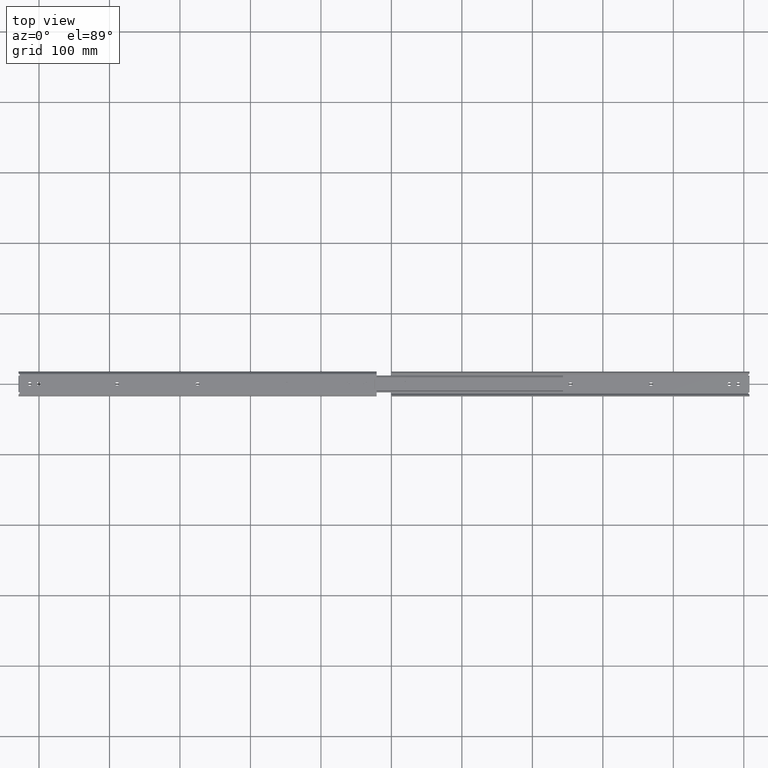
[diagram: clean part render]
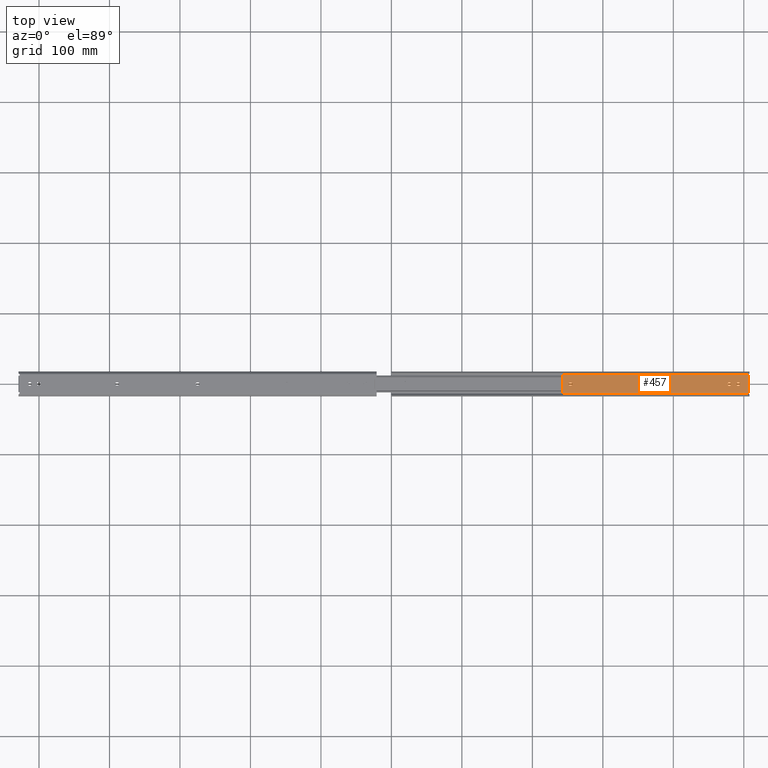
[diagram: same view with one face highlighted and labeled with its STEP entity id]
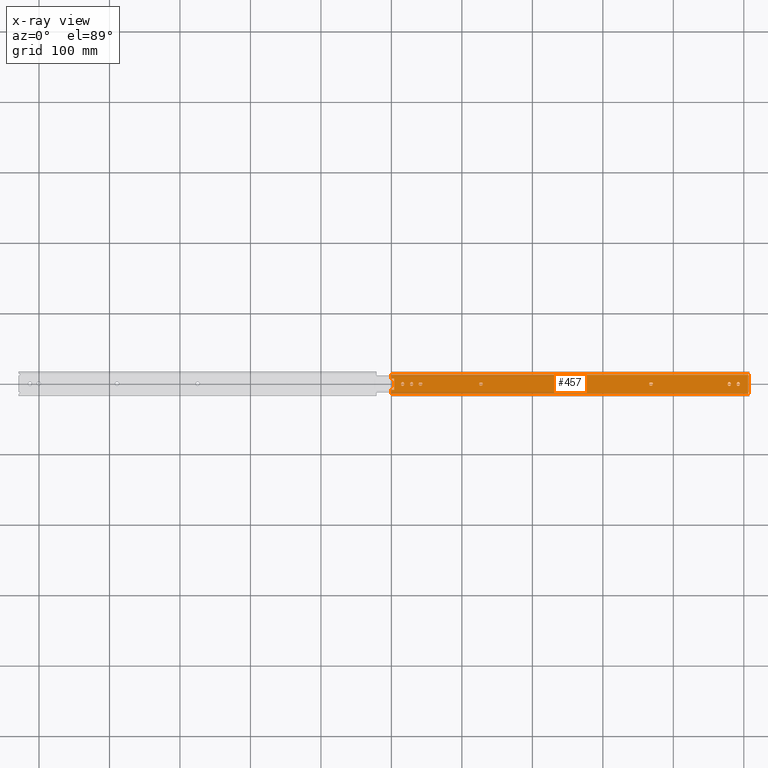
[diagram: x-ray of the same camera — body ghosted, the highlighted face saturated]
A machine part, top view. The second image highlights one B-rep face of the part: STEP entity #457.
The next image is the same camera in x-ray: the body ghosted, the highlighted face saturated — about 0% of this face is hidden behind the body in this view.
In plain terms, the highlighted planar face has unit normal (0, 0, -1).
Its self-contained STEP definition (entity closure, byte-faithful):
#5 = CARTESIAN_POINT ( 'NONE',  ( 492.1000000000000200, -0.3999999999999598300, 1.600000000000168200 ) ) ;
#12 = CIRCLE ( 'NONE', #322, 2.250000000000029800 ) ;
#22 = AXIS2_PLACEMENT_3D ( 'NONE', #2316, #2688, #2342 ) ;
#32 = DIRECTION ( 'NONE',  ( -0.0000000000000000000, 1.000000000000000000, -0.0000000000000000000 ) ) ;
#43 = EDGE_LOOP ( 'NONE', ( #3118, #1268, #4085, #3239 ) ) ;
#57 = CIRCLE ( 'NONE', #58, 2.250000000000001800 ) ;
#58 = AXIS2_PLACEMENT_3D ( 'NONE', #1767, #704, #2543 ) ;
#64 = VERTEX_POINT ( 'NONE', #2339 ) ;
#70 = EDGE_CURVE ( 'NONE', #4031, #3600, #2826, .T. ) ;
#105 = AXIS2_PLACEMENT_3D ( 'NONE', #4296, #2101, #4673 ) ;
#124 = VECTOR ( 'NONE', #377, 1000.000000000000000 ) ;
#143 = EDGE_CURVE ( 'NONE', #379, #862, #3688, .T. ) ;
#152 = VECTOR ( 'NONE', #1735, 1000.000000000000000 ) ;
#154 = VERTEX_POINT ( 'NONE', #2248 ) ;
#175 = AXIS2_PLACEMENT_3D ( 'NONE', #1875, #4438, #2239 ) ;
#211 = CARTESIAN_POINT ( 'NONE',  ( 0.0000000000000000000, 8.000000000000000000, 1.600000000000168200 ) ) ;
#212 = DIRECTION ( 'NONE',  ( -1.355252715606880500E-016, 1.000000000000000000, -0.0000000000000000000 ) ) ;
#216 = EDGE_CURVE ( 'NONE', #2126, #3901, #3348, .T. ) ;
#217 = VECTOR ( 'NONE', #932, 1000.000000000000000 ) ;
#222 = EDGE_CURVE ( 'NONE', #4706, #4031, #2460, .T. ) ;
#243 = VECTOR ( 'NONE', #4186, 1000.000000000000000 ) ;
#297 = LINE ( 'NONE', #4290, #2276 ) ;
#300 = EDGE_CURVE ( 'NONE', #4196, #3437, #3952, .T. ) ;
#303 = DIRECTION ( 'NONE',  ( 1.000000000000000000, 0.0000000000000000000, 0.0000000000000000000 ) ) ;
#320 = CARTESIAN_POINT ( 'NONE',  ( 0.0000000000000000000, 13.34999999999963900, 1.600000000000168200 ) ) ;
#322 = AXIS2_PLACEMENT_3D ( 'NONE', #1106, #3674, #1471 ) ;
#325 = ORIENTED_EDGE ( 'NONE', *, *, #3504, .T. ) ;
#342 = DIRECTION ( 'NONE',  ( 1.000000000000000000, 0.0000000000000000000, 0.0000000000000000000 ) ) ;
#352 = CARTESIAN_POINT ( 'NONE',  ( 368.7000000000000500, 5.082535335627669000E-014, 1.600000000000168200 ) ) ;
#356 = VECTOR ( 'NONE', #4611, 1000.000000000000000 ) ;
#370 = CARTESIAN_POINT ( 'NONE',  ( 0.0000000000000000000, -13.34999999999963900, 1.600000000000168200 ) ) ;
#373 = CARTESIAN_POINT ( 'NONE',  ( 18.15000000000000600, 0.3999999999999995800, 1.600000000000168200 ) ) ;
#375 = EDGE_CURVE ( 'NONE', #2448, #2126, #3740, .T. ) ;
#377 = DIRECTION ( 'NONE',  ( 1.000000000000000000, 0.0000000000000000000, 0.0000000000000000000 ) ) ;
#379 = VERTEX_POINT ( 'NONE', #3242 ) ;
#390 = DIRECTION ( 'NONE',  ( 0.0000000000000000000, 0.0000000000000000000, 1.000000000000000000 ) ) ;
#395 = ORIENTED_EDGE ( 'NONE', *, *, #3911, .F. ) ;
#398 = CARTESIAN_POINT ( 'NONE',  ( 254.4000000000000100, 2.249999999999965800, 1.600000000000168200 ) ) ;
#400 = VERTEX_POINT ( 'NONE', #2232 ) ;
#404 = CIRCLE ( 'NONE', #1876, 2.250000000000029800 ) ;
#421 = DIRECTION ( 'NONE',  ( 0.0000000000000000000, 0.0000000000000000000, 1.000000000000000000 ) ) ;
#424 = VECTOR ( 'NONE', #1825, 1000.000000000000000 ) ;
#435 = CARTESIAN_POINT ( 'NONE',  ( 506.3220781010616600, -13.34999999999963900, 1.600000000000168200 ) ) ;
#457 = ADVANCED_FACE ( 'NONE', ( #4360, #1556, #2524, #799, #3397, #2406, #1701, #725, #4522 ), #513, .F. ) ;
#477 = VECTOR ( 'NONE', #3534, 1000.000000000000000 ) ;
#478 = VECTOR ( 'NONE', #929, 1000.000000000000000 ) ;
#513 = PLANE ( 'NONE',  #22 ) ;
#516 = VERTEX_POINT ( 'NONE', #1185 ) ;
#517 = LINE ( 'NONE', #4460, #4313 ) ;
#523 = VERTEX_POINT ( 'NONE', #2702 ) ;
#529 = DIRECTION ( 'NONE',  ( 1.000000000000000000, 0.0000000000000000000, 0.0000000000000000000 ) ) ;
#530 = VECTOR ( 'NONE', #3368, 1000.000000000000000 ) ;
#578 = EDGE_CURVE ( 'NONE', #862, #1206, #1995, .T. ) ;
#594 = LINE ( 'NONE', #3625, #477 ) ;
#600 = DIRECTION ( 'NONE',  ( 0.0000000000000000000, 0.0000000000000000000, 1.000000000000000000 ) ) ;
#610 = AXIS2_PLACEMENT_3D ( 'NONE', #3990, #989, #1717 ) ;
#620 = ORIENTED_EDGE ( 'NONE', *, *, #721, .F. ) ;
#627 = VERTEX_POINT ( 'NONE', #3183 ) ;
#636 = EDGE_CURVE ( 'NONE', #516, #64, #892, .T. ) ;
#661 = VECTOR ( 'NONE', #4370, 1000.000000000000000 ) ;
#669 = CARTESIAN_POINT ( 'NONE',  ( 367.8999999999999800, 2.249999999999948900, 1.600000000000168200 ) ) ;
#671 = CARTESIAN_POINT ( 'NONE',  ( 477.1500000000000900, 0.4000000000000340000, 1.600000000000168200 ) ) ;
#677 = ORIENTED_EDGE ( 'NONE', *, *, #2538, .F. ) ;
#681 = CARTESIAN_POINT ( 'NONE',  ( 479.4000000000000300, 0.4000000000000901200, 1.600000000000168200 ) ) ;
#685 = EDGE_LOOP ( 'NONE', ( #1222, #4643, #2525, #3959 ) ) ;
#704 = DIRECTION ( 'NONE',  ( 0.0000000000000000000, 0.0000000000000000000, 1.000000000000000000 ) ) ;
#721 = EDGE_CURVE ( 'NONE', #3566, #4196, #3595, .T. ) ;
#725 = FACE_BOUND ( 'NONE', #1040, .T. ) ;
#734 = DIRECTION ( 'NONE',  ( 1.000000000000000000, 0.0000000000000000000, 0.0000000000000000000 ) ) ;
#740 = DIRECTION ( 'NONE',  ( 1.000000000000000000, 0.0000000000000000000, 0.0000000000000000000 ) ) ;
#743 = CARTESIAN_POINT ( 'NONE',  ( 506.3999999999999800, 11.49999999999984700, 1.600000000000168200 ) ) ;
#790 = EDGE_CURVE ( 'NONE', #3473, #2448, #297, .T. ) ;
#791 = DIRECTION ( 'NONE',  ( 0.0000000000000000000, -1.000000000000000000, 0.0000000000000000000 ) ) ;
#799 = FACE_BOUND ( 'NONE', #2765, .T. ) ;
#800 = ORIENTED_EDGE ( 'NONE', *, *, #3784, .F. ) ;
#804 = EDGE_CURVE ( 'NONE', #627, #4189, #3150, .T. ) ;
#812 = VERTEX_POINT ( 'NONE', #3519 ) ;
#840 = EDGE_CURVE ( 'NONE', #1558, #4305, #1935, .T. ) ;
#860 = VECTOR ( 'NONE', #2621, 1000.000000000000000 ) ;
#862 = VERTEX_POINT ( 'NONE', #2095 ) ;
#863 = ORIENTED_EDGE ( 'NONE', *, *, #2198, .F. ) ;
#875 = AXIS2_PLACEMENT_3D ( 'NONE', #2623, #3681, #4687 ) ;
#892 = LINE ( 'NONE', #211, #3931 ) ;
#898 = CARTESIAN_POINT ( 'NONE',  ( 26.34999999999998400, 0.3999999999999975800, 1.600000000000168200 ) ) ;
#923 = CARTESIAN_POINT ( 'NONE',  ( 254.4000000000000600, 1.507836666562150000E-012, 1.600000000000168200 ) ) ;
#929 = DIRECTION ( 'NONE',  ( -1.355252715606880500E-016, 1.000000000000000000, -0.0000000000000000000 ) ) ;
#932 = DIRECTION ( 'NONE',  ( -0.0000000000000000000, 1.000000000000000000, -0.0000000000000000000 ) ) ;
#957 = EDGE_CURVE ( 'NONE', #1954, #1574, #594, .T. ) ;
#967 = VERTEX_POINT ( 'NONE', #2377 ) ;
#972 = ORIENTED_EDGE ( 'NONE', *, *, #2631, .F. ) ;
#985 = EDGE_CURVE ( 'NONE', #967, #64, #2333, .T. ) ;
#989 = DIRECTION ( 'NONE',  ( -0.0000000000000000000, -0.0000000000000000000, 1.000000000000000000 ) ) ;
#1002 = LINE ( 'NONE', #1719, #3818 ) ;
#1007 = LINE ( 'NONE', #3319, #4688 ) ;
#1009 = CARTESIAN_POINT ( 'NONE',  ( 3.799999999999999400, 8.000000000000000000, 1.600000000000168200 ) ) ;
#1027 = VERTEX_POINT ( 'NONE', #2083 ) ;
#1033 = AXIS2_PLACEMENT_3D ( 'NONE', #1437, #4001, #1813 ) ;
#1034 = CARTESIAN_POINT ( 'NONE',  ( 367.8999999999999800, -2.250000000000050600, 1.600000000000168200 ) ) ;
#1036 = ORIENTED_EDGE ( 'NONE', *, *, #3443, .F. ) ;
#1040 = EDGE_LOOP ( 'NONE', ( #3351, #395, #1504, #2466 ) ) ;
#1043 = ORIENTED_EDGE ( 'NONE', *, *, #578, .F. ) ;
#1051 = EDGE_CURVE ( 'NONE', #4142, #379, #3087, .T. ) ;
#1061 = EDGE_CURVE ( 'NONE', #4638, #1156, #2978, .T. ) ;
#1065 = DIRECTION ( 'NONE',  ( 1.000000000000000000, 0.0000000000000000000, 0.0000000000000000000 ) ) ;
#1067 = VECTOR ( 'NONE', #2592, 1000.000000000000000 ) ;
#1103 = VECTOR ( 'NONE', #2899, 1000.000000000000000 ) ;
#1106 = CARTESIAN_POINT ( 'NONE',  ( 479.4000000000000300, -0.3999999999999614400, 1.600000000000168200 ) ) ;
#1108 = VERTEX_POINT ( 'NONE', #4790 ) ;
#1129 = EDGE_CURVE ( 'NONE', #4305, #3566, #3713, .T. ) ;
#1150 = EDGE_CURVE ( 'NONE', #154, #4706, #2853, .T. ) ;
#1156 = VERTEX_POINT ( 'NONE', #2967 ) ;
#1157 = EDGE_CURVE ( 'NONE', #523, #2457, #1640, .T. ) ;
#1162 = CARTESIAN_POINT ( 'NONE',  ( 489.8500000000000800, 0.4000000000000345500, 1.600000000000168200 ) ) ;
#1164 = EDGE_CURVE ( 'NONE', #1156, #2409, #1523, .T. ) ;
#1176 = EDGE_LOOP ( 'NONE', ( #677, #2653, #800, #4601, #3453 ) ) ;
#1185 = CARTESIAN_POINT ( 'NONE',  ( 3.799999999999999400, 8.000000000000000000, 1.600000000000168200 ) ) ;
#1195 = VERTEX_POINT ( 'NONE', #3985 ) ;
#1206 = VERTEX_POINT ( 'NONE', #398 ) ;
#1207 = CARTESIAN_POINT ( 'NONE',  ( 43.95000000000000300, 3.337652803933819400E-015, 1.600000000000168200 ) ) ;
#1222 = ORIENTED_EDGE ( 'NONE', *, *, #957, .F. ) ;
#1230 = CIRCLE ( 'NONE', #1033, 2.249999999999998700 ) ;
#1247 = LINE ( 'NONE', #3459, #243 ) ;
#1258 = ORIENTED_EDGE ( 'NONE', *, *, #2274, .F. ) ;
#1261 = EDGE_LOOP ( 'NONE', ( #1613, #2773, #4648, #1043, #2465 ) ) ;
#1268 = ORIENTED_EDGE ( 'NONE', *, *, #2577, .F. ) ;
#1289 = CARTESIAN_POINT ( 'NONE',  ( 3.799999999999999400, 8.000000000000000000, 1.600000000000168200 ) ) ;
#1299 = VECTOR ( 'NONE', #212, 1000.000000000000000 ) ;
#1303 = AXIS2_PLACEMENT_3D ( 'NONE', #352, #2958, #740 ) ;
#1308 = CARTESIAN_POINT ( 'NONE',  ( 30.85000000000000100, 0.4000000000000040700, 1.600000000000168200 ) ) ;
#1329 = DIRECTION ( 'NONE',  ( 1.000000000000000000, 0.0000000000000000000, 0.0000000000000000000 ) ) ;
#1338 = VECTOR ( 'NONE', #3606, 1000.000000000000000 ) ;
#1340 = AXIS2_PLACEMENT_3D ( 'NONE', #5, #4340, #2916 ) ;
#1356 = AXIS2_PLACEMENT_3D ( 'NONE', #4726, #2519, #303 ) ;
#1390 = VECTOR ( 'NONE', #791, 1000.000000000000000 ) ;
#1399 = CARTESIAN_POINT ( 'NONE',  ( 506.3999999999999800, 11.49999999999984700, 1.600000000000168200 ) ) ;
#1417 = CARTESIAN_POINT ( 'NONE',  ( 40.89999999999999100, -2.250000000000001800, 1.600000000000168200 ) ) ;
#1419 = AXIS2_PLACEMENT_3D ( 'NONE', #2647, #421, #3025 ) ;
#1420 = VERTEX_POINT ( 'NONE', #1207 ) ;
#1426 = ORIENTED_EDGE ( 'NONE', *, *, #4184, .F. ) ;
#1437 = CARTESIAN_POINT ( 'NONE',  ( 28.59999999999999800, 0.4000000000000038000, 1.600000000000168200 ) ) ;
#1461 = CARTESIAN_POINT ( 'NONE',  ( 40.89999999999999100, -2.250000000000001800, 1.600000000000168200 ) ) ;
#1471 = DIRECTION ( 'NONE',  ( 1.000000000000000000, 0.0000000000000000000, 0.0000000000000000000 ) ) ;
#1504 = ORIENTED_EDGE ( 'NONE', *, *, #4315, .F. ) ;
#1505 = VERTEX_POINT ( 'NONE', #743 ) ;
#1507 = CIRCLE ( 'NONE', #1356, 2.250000000000001800 ) ;
#1515 = LINE ( 'NONE', #1399, #4561 ) ;
#1523 = LINE ( 'NONE', #1942, #2488 ) ;
#1530 = CARTESIAN_POINT ( 'NONE',  ( 253.5999999999999900, 2.249999999999965800, 1.600000000000168200 ) ) ;
#1534 = ORIENTED_EDGE ( 'NONE', *, *, #3594, .T. ) ;
#1535 = CARTESIAN_POINT ( 'NONE',  ( 129.6500000000000100, 1.230082464744604100E-014, 1.600000000000168200 ) ) ;
#1548 = CARTESIAN_POINT ( 'NONE',  ( 506.3220781010616600, 13.34999999999963900, 1.600000000000168200 ) ) ;
#1556 = FACE_BOUND ( 'NONE', #1261, .T. ) ;
#1558 = VERTEX_POINT ( 'NONE', #1535 ) ;
#1574 = VERTEX_POINT ( 'NONE', #3614 ) ;
#1600 = CARTESIAN_POINT ( 'NONE',  ( 41.70000000000000300, 3.337652803933819400E-015, 1.600000000000168200 ) ) ;
#1613 = ORIENTED_EDGE ( 'NONE', *, *, #1051, .F. ) ;
#1617 = ORIENTED_EDGE ( 'NONE', *, *, #300, .F. ) ;
#1640 = CIRCLE ( 'NONE', #2825, 2.249999999999974200 ) ;
#1674 = CARTESIAN_POINT ( 'NONE',  ( 126.5999999999999900, -2.250000000000007100, 1.600000000000168200 ) ) ;
#1701 = FACE_BOUND ( 'NONE', #43, .T. ) ;
#1706 = CARTESIAN_POINT ( 'NONE',  ( 253.5999999999999900, -1.540743955509788700E-030, 1.600000000000168200 ) ) ;
#1714 = DIRECTION ( 'NONE',  ( -1.000000000000000000, -0.0000000000000000000, -0.0000000000000000000 ) ) ;
#1716 = ORIENTED_EDGE ( 'NONE', *, *, #222, .F. ) ;
#1717 = DIRECTION ( 'NONE',  ( -1.000000000000000000, 4.403528823633166200E-014, 0.0000000000000000000 ) ) ;
#1719 = CARTESIAN_POINT ( 'NONE',  ( 18.15000000000000600, 0.3999999999999995800, 1.600000000000168200 ) ) ;
#1735 = DIRECTION ( 'NONE',  ( 1.000000000000000000, 0.0000000000000000000, 0.0000000000000000000 ) ) ;
#1752 = VECTOR ( 'NONE', #2932, 1000.000000000000000 ) ;
#1767 = CARTESIAN_POINT ( 'NONE',  ( 127.4000000000000200, 1.230082464744604100E-014, 1.600000000000168200 ) ) ;
#1768 = EDGE_CURVE ( 'NONE', #3437, #1558, #57, .T. ) ;
#1771 = CARTESIAN_POINT ( 'NONE',  ( 127.4000000000000200, -2.249999999999987600, 1.600000000000168200 ) ) ;
#1777 = VERTEX_POINT ( 'NONE', #2661 ) ;
#1793 = VERTEX_POINT ( 'NONE', #2752 ) ;
#1794 = CARTESIAN_POINT ( 'NONE',  ( 3.800000000000001600, -8.000000000000000000, 1.600000000000168200 ) ) ;
#1796 = DIRECTION ( 'NONE',  ( -0.0000000000000000000, 1.000000000000000000, -0.0000000000000000000 ) ) ;
#1813 = DIRECTION ( 'NONE',  ( 1.000000000000000000, 0.0000000000000000000, 0.0000000000000000000 ) ) ;
#1814 = DIRECTION ( 'NONE',  ( 0.0000000000000000000, 0.0000000000000000000, 1.000000000000000000 ) ) ;
#1818 = VERTEX_POINT ( 'NONE', #2452 ) ;
#1825 = DIRECTION ( 'NONE',  ( 0.0000000000000000000, -1.000000000000000000, 0.0000000000000000000 ) ) ;
#1827 = AXIS2_PLACEMENT_3D ( 'NONE', #2616, #390, #2996 ) ;
#1842 = DIRECTION ( 'NONE',  ( 1.000000000000000000, 0.0000000000000000000, 0.0000000000000000000 ) ) ;
#1851 = ORIENTED_EDGE ( 'NONE', *, *, #2726, .F. ) ;
#1875 = CARTESIAN_POINT ( 'NONE',  ( 507.5000000000007400, 12.79999999999966100, 1.600000000000168200 ) ) ;
#1876 = AXIS2_PLACEMENT_3D ( 'NONE', #681, #3276, #1065 ) ;
#1904 = DIRECTION ( 'NONE',  ( 1.000000000000000000, 0.0000000000000000000, 0.0000000000000000000 ) ) ;
#1933 = DIRECTION ( 'NONE',  ( 0.0000000000000000000, 0.0000000000000000000, 1.000000000000000000 ) ) ;
#1935 = CIRCLE ( 'NONE', #2672, 2.250000000000001800 ) ;
#1940 = CIRCLE ( 'NONE', #1419, 2.249999999999974200 ) ;
#1942 = CARTESIAN_POINT ( 'NONE',  ( 494.3499999999999100, 0.4000000000000920000, 1.600000000000168200 ) ) ;
#1954 = VERTEX_POINT ( 'NONE', #671 ) ;
#1966 = VERTEX_POINT ( 'NONE', #1794 ) ;
#1974 = DIRECTION ( 'NONE',  ( 1.000000000000000000, 0.0000000000000000000, 0.0000000000000000000 ) ) ;
#1975 = CIRCLE ( 'NONE', #2766, 2.249999999999918700 ) ;
#1995 = CIRCLE ( 'NONE', #2498, 2.249999999999974200 ) ;
#2071 = LINE ( 'NONE', #3250, #1103 ) ;
#2074 = DIRECTION ( 'NONE',  ( 1.000000000000000000, 0.0000000000000000000, 0.0000000000000000000 ) ) ;
#2075 = ORIENTED_EDGE ( 'NONE', *, *, #1061, .F. ) ;
#2083 = CARTESIAN_POINT ( 'NONE',  ( 489.8500000000000800, 0.4000000000000340000, 1.600000000000168200 ) ) ;
#2095 = CARTESIAN_POINT ( 'NONE',  ( 256.6500000000000300, 1.507836666562150000E-012, 1.600000000000168200 ) ) ;
#2101 = DIRECTION ( 'NONE',  ( 0.0000000000000000000, 0.0000000000000000000, 1.000000000000000000 ) ) ;
#2116 = VERTEX_POINT ( 'NONE', #669 ) ;
#2126 = VERTEX_POINT ( 'NONE', #1417 ) ;
#2159 = CIRCLE ( 'NONE', #175, 1.300000000000078900 ) ;
#2162 = ORIENTED_EDGE ( 'NONE', *, *, #375, .F. ) ;
#2166 = CARTESIAN_POINT ( 'NONE',  ( 508.0000000000000000, 13.34999999999963900, 1.600000000000168200 ) ) ;
#2180 = CARTESIAN_POINT ( 'NONE',  ( 489.8500000000001400, -0.4000000000000335000, 1.600000000000168200 ) ) ;
#2184 = EDGE_CURVE ( 'NONE', #2751, #4142, #2968, .T. ) ;
#2186 = ORIENTED_EDGE ( 'NONE', *, *, #790, .F. ) ;
#2190 = LINE ( 'NONE', #1308, #217 ) ;
#2192 = CARTESIAN_POINT ( 'NONE',  ( 253.5999999999999900, -2.250000000000033800, 1.600000000000168200 ) ) ;
#2198 = EDGE_CURVE ( 'NONE', #1420, #3473, #2200, .T. ) ;
#2200 = CIRCLE ( 'NONE', #3919, 2.250000000000001800 ) ;
#2211 = DIRECTION ( 'NONE',  ( 0.0000000000000000000, 0.0000000000000000000, 1.000000000000000000 ) ) ;
#2223 = CARTESIAN_POINT ( 'NONE',  ( 41.70000000000000300, -2.249999999999996400, 1.600000000000168200 ) ) ;
#2232 = CARTESIAN_POINT ( 'NONE',  ( 481.6500000000001500, -0.3999999999999602800, 1.600000000000168200 ) ) ;
#2239 = DIRECTION ( 'NONE',  ( -1.000000000000000000, 0.0000000000000000000, 0.0000000000000000000 ) ) ;
#2248 = CARTESIAN_POINT ( 'NONE',  ( 506.3999999999999800, -11.49999999999980600, 1.600000000000168200 ) ) ;
#2274 = EDGE_CURVE ( 'NONE', #1966, #627, #3583, .T. ) ;
#2276 = VECTOR ( 'NONE', #3126, 1000.000000000000000 ) ;
#2282 = EDGE_CURVE ( 'NONE', #1505, #154, #1515, .T. ) ;
#2315 = EDGE_CURVE ( 'NONE', #1777, #1954, #404, .T. ) ;
#2316 = CARTESIAN_POINT ( 'NONE',  ( 508.0000000000000000, 13.34999999999963900, 1.600000000000168200 ) ) ;
#2333 = LINE ( 'NONE', #4734, #356 ) ;
#2338 = VECTOR ( 'NONE', #4550, 1000.000000000000000 ) ;
#2339 = CARTESIAN_POINT ( 'NONE',  ( 0.0000000000000000000, 8.000000000000000000, 1.600000000000168200 ) ) ;
#2342 = DIRECTION ( 'NONE',  ( -1.000000000000000000, 0.0000000000000000000, -0.0000000000000000000 ) ) ;
#2353 = ORIENTED_EDGE ( 'NONE', *, *, #636, .F. ) ;
#2360 = VECTOR ( 'NONE', #734, 1000.000000000000000 ) ;
#2372 = LINE ( 'NONE', #1162, #1390 ) ;
#2377 = CARTESIAN_POINT ( 'NONE',  ( 0.0000000000000000000, 13.34999999999963900, 1.600000000000168200 ) ) ;
#2401 = DIRECTION ( 'NONE',  ( 0.0000000000000000000, 0.0000000000000000000, 1.000000000000000000 ) ) ;
#2406 = FACE_BOUND ( 'NONE', #685, .T. ) ;
#2409 = VERTEX_POINT ( 'NONE', #3530 ) ;
#2417 = ORIENTED_EDGE ( 'NONE', *, *, #804, .F. ) ;
#2438 = CARTESIAN_POINT ( 'NONE',  ( 40.89999999999999100, 2.249999999999998200, 1.600000000000168200 ) ) ;
#2439 = LINE ( 'NONE', #4171, #2338 ) ;
#2448 = VERTEX_POINT ( 'NONE', #2438 ) ;
#2452 = CARTESIAN_POINT ( 'NONE',  ( 507.5000000000013100, 11.49999999999984700, 1.600000000000168200 ) ) ;
#2457 = VERTEX_POINT ( 'NONE', #3197 ) ;
#2460 = CIRCLE ( 'NONE', #610, 1.300000000000078900 ) ;
#2465 = ORIENTED_EDGE ( 'NONE', *, *, #143, .F. ) ;
#2466 = ORIENTED_EDGE ( 'NONE', *, *, #3053, .F. ) ;
#2488 = VECTOR ( 'NONE', #1796, 1000.000000000000000 ) ;
#2498 = AXIS2_PLACEMENT_3D ( 'NONE', #923, #1933, #529 ) ;
#2501 = LINE ( 'NONE', #2166, #661 ) ;
#2519 = DIRECTION ( 'NONE',  ( 0.0000000000000000000, 0.0000000000000000000, 1.000000000000000000 ) ) ;
#2524 = FACE_BOUND ( 'NONE', #3161, .T. ) ;
#2525 = ORIENTED_EDGE ( 'NONE', *, *, #2720, .F. ) ;
#2531 = CARTESIAN_POINT ( 'NONE',  ( 127.4000000000000200, 1.230082464744604100E-014, 1.600000000000168200 ) ) ;
#2538 = EDGE_CURVE ( 'NONE', #4656, #2541, #3312, .T. ) ;
#2541 = VERTEX_POINT ( 'NONE', #3969 ) ;
#2543 = DIRECTION ( 'NONE',  ( 1.000000000000000000, 0.0000000000000000000, 0.0000000000000000000 ) ) ;
#2568 = CARTESIAN_POINT ( 'NONE',  ( 367.8999999999999800, -2.250000000000050600, 1.600000000000168200 ) ) ;
#2577 = EDGE_CURVE ( 'NONE', #812, #3799, #1230, .T. ) ;
#2592 = DIRECTION ( 'NONE',  ( 0.0000000000000000000, -1.000000000000000000, 0.0000000000000000000 ) ) ;
#2594 = ORIENTED_EDGE ( 'NONE', *, *, #1150, .F. ) ;
#2601 = ORIENTED_EDGE ( 'NONE', *, *, #216, .F. ) ;
#2616 = CARTESIAN_POINT ( 'NONE',  ( 15.89999999999999700, 0.3999999999999997400, 1.600000000000168200 ) ) ;
#2621 = DIRECTION ( 'NONE',  ( -1.000000000000000000, -0.0000000000000000000, -0.0000000000000000000 ) ) ;
#2623 = CARTESIAN_POINT ( 'NONE',  ( 40.89999999999999100, 3.239681060002030200E-015, 1.600000000000168200 ) ) ;
#2631 = EDGE_CURVE ( 'NONE', #2409, #1027, #1975, .T. ) ;
#2647 = CARTESIAN_POINT ( 'NONE',  ( 367.8999999999999800, -1.540743955509788700E-030, 1.600000000000168200 ) ) ;
#2653 = ORIENTED_EDGE ( 'NONE', *, *, #3635, .F. ) ;
#2661 = CARTESIAN_POINT ( 'NONE',  ( 481.6500000000001500, 0.4000000000000903900, 1.600000000000168200 ) ) ;
#2672 = AXIS2_PLACEMENT_3D ( 'NONE', #2531, #2401, #1329 ) ;
#2688 = DIRECTION ( 'NONE',  ( 0.0000000000000000000, 0.0000000000000000000, -1.000000000000000000 ) ) ;
#2702 = CARTESIAN_POINT ( 'NONE',  ( 370.9499999999999900, 5.082535335627669000E-014, 1.600000000000168200 ) ) ;
#2720 = EDGE_CURVE ( 'NONE', #400, #1777, #517, .T. ) ;
#2726 = EDGE_CURVE ( 'NONE', #1027, #4638, #2372, .T. ) ;
#2751 = VERTEX_POINT ( 'NONE', #3739 ) ;
#2752 = CARTESIAN_POINT ( 'NONE',  ( 18.15000000000000600, -0.3999999999999995800, 1.600000000000168200 ) ) ;
#2765 = EDGE_LOOP ( 'NONE', ( #2601, #2162, #2186, #863, #3798 ) ) ;
#2766 = AXIS2_PLACEMENT_3D ( 'NONE', #4406, #2211, #4789 ) ;
#2773 = ORIENTED_EDGE ( 'NONE', *, *, #2184, .F. ) ;
#2814 = EDGE_CURVE ( 'NONE', #3901, #1420, #3854, .T. ) ;
#2820 = CARTESIAN_POINT ( 'NONE',  ( 41.70000000000000300, 3.337652803933819400E-015, 1.600000000000168200 ) ) ;
#2825 = AXIS2_PLACEMENT_3D ( 'NONE', #4002, #1814, #342 ) ;
#2826 = LINE ( 'NONE', #4539, #860 ) ;
#2853 = LINE ( 'NONE', #2878, #4457 ) ;
#2878 = CARTESIAN_POINT ( 'NONE',  ( 508.0000000000000000, -11.49999999999980600, 1.600000000000168200 ) ) ;
#2899 = DIRECTION ( 'NONE',  ( -1.000000000000000000, 0.0000000000000000000, 0.0000000000000000000 ) ) ;
#2916 = DIRECTION ( 'NONE',  ( 1.000000000000000000, 0.0000000000000000000, 0.0000000000000000000 ) ) ;
#2932 = DIRECTION ( 'NONE',  ( -1.000000000000000000, -0.0000000000000000000, -0.0000000000000000000 ) ) ;
#2935 = CARTESIAN_POINT ( 'NONE',  ( 126.5999999999999900, -2.250000000000006700, 1.600000000000168200 ) ) ;
#2956 = CIRCLE ( 'NONE', #105, 2.250000000000001800 ) ;
#2958 = DIRECTION ( 'NONE',  ( 0.0000000000000000000, 0.0000000000000000000, 1.000000000000000000 ) ) ;
#2961 = CARTESIAN_POINT ( 'NONE',  ( 126.5999999999999900, 2.249999999999992900, 1.600000000000168200 ) ) ;
#2962 = AXIS2_PLACEMENT_3D ( 'NONE', #1706, #4264, #2074 ) ;
#2967 = CARTESIAN_POINT ( 'NONE',  ( 494.3499999999999100, -0.3999999999999586700, 1.600000000000168200 ) ) ;
#2968 = CIRCLE ( 'NONE', #2962, 2.249999999999974200 ) ;
#2978 = CIRCLE ( 'NONE', #1340, 2.249999999999918700 ) ;
#2988 = EDGE_CURVE ( 'NONE', #3286, #812, #2190, .T. ) ;
#2996 = DIRECTION ( 'NONE',  ( 1.000000000000000000, 0.0000000000000000000, 0.0000000000000000000 ) ) ;
#3025 = DIRECTION ( 'NONE',  ( 1.000000000000000000, 0.0000000000000000000, 0.0000000000000000000 ) ) ;
#3053 = EDGE_CURVE ( 'NONE', #1108, #1793, #2956, .T. ) ;
#3087 = LINE ( 'NONE', #2192, #124 ) ;
#3104 = CARTESIAN_POINT ( 'NONE',  ( 3.799999999999999400, 8.000000000000000000, 1.600000000000168200 ) ) ;
#3118 = ORIENTED_EDGE ( 'NONE', *, *, #4497, .F. ) ;
#3126 = DIRECTION ( 'NONE',  ( -1.000000000000000000, -0.0000000000000000000, -0.0000000000000000000 ) ) ;
#3138 = EDGE_CURVE ( 'NONE', #4332, #3286, #1507, .T. ) ;
#3149 = CARTESIAN_POINT ( 'NONE',  ( 3.799999999999999400, 7.000000000000000000, 1.600000000000168200 ) ) ;
#3150 = LINE ( 'NONE', #3104, #1299 ) ;
#3161 = EDGE_LOOP ( 'NONE', ( #1617, #620, #3692, #3455, #4546 ) ) ;
#3183 = CARTESIAN_POINT ( 'NONE',  ( 3.800000000000001600, -6.999999999999999100, 1.600000000000168200 ) ) ;
#3188 = CARTESIAN_POINT ( 'NONE',  ( 127.4000000000000200, 2.249999999999992900, 1.600000000000168200 ) ) ;
#3190 = DIRECTION ( 'NONE',  ( 1.000000000000000000, 0.0000000000000000000, 0.0000000000000000000 ) ) ;
#3197 = CARTESIAN_POINT ( 'NONE',  ( 368.7000000000001000, 2.249999999999948900, 1.600000000000168200 ) ) ;
#3223 = DIRECTION ( 'NONE',  ( -1.355252715606880500E-016, 1.000000000000000000, -0.0000000000000000000 ) ) ;
#3239 = ORIENTED_EDGE ( 'NONE', *, *, #3138, .F. ) ;
#3242 = CARTESIAN_POINT ( 'NONE',  ( 254.4000000000000100, -2.249999999998491900, 1.600000000000168200 ) ) ;
#3250 = CARTESIAN_POINT ( 'NONE',  ( 508.0000000000000000, 11.49999999999984700, 1.600000000000168200 ) ) ;
#3276 = DIRECTION ( 'NONE',  ( 0.0000000000000000000, 0.0000000000000000000, 1.000000000000000000 ) ) ;
#3286 = VERTEX_POINT ( 'NONE', #4221 ) ;
#3312 = LINE ( 'NONE', #1034, #1338 ) ;
#3319 = CARTESIAN_POINT ( 'NONE',  ( 1.708415533803517000E-015, -8.000000000000000000, 1.600000000000168200 ) ) ;
#3339 = ORIENTED_EDGE ( 'NONE', *, *, #2282, .F. ) ;
#3348 = LINE ( 'NONE', #1461, #2360 ) ;
#3351 = ORIENTED_EDGE ( 'NONE', *, *, #3769, .F. ) ;
#3368 = DIRECTION ( 'NONE',  ( -1.000000000000000000, -0.0000000000000000000, -0.0000000000000000000 ) ) ;
#3384 = LINE ( 'NONE', #320, #424 ) ;
#3397 = FACE_BOUND ( 'NONE', #4704, .T. ) ;
#3428 = LINE ( 'NONE', #1289, #478 ) ;
#3437 = VERTEX_POINT ( 'NONE', #1771 ) ;
#3443 = EDGE_CURVE ( 'NONE', #1818, #1505, #2071, .T. ) ;
#3451 = DIRECTION ( 'NONE',  ( 0.0000000000000000000, 0.0000000000000000000, 1.000000000000000000 ) ) ;
#3453 = ORIENTED_EDGE ( 'NONE', *, *, #4676, .F. ) ;
#3455 = ORIENTED_EDGE ( 'NONE', *, *, #840, .F. ) ;
#3459 = CARTESIAN_POINT ( 'NONE',  ( 367.8999999999999800, 2.249999999999948900, 1.600000000000168200 ) ) ;
#3473 = VERTEX_POINT ( 'NONE', #3640 ) ;
#3474 = CARTESIAN_POINT ( 'NONE',  ( 253.5999999999999900, -2.250000000000033300, 1.600000000000168200 ) ) ;
#3504 = EDGE_CURVE ( 'NONE', #3669, #967, #2501, .T. ) ;
#3519 = CARTESIAN_POINT ( 'NONE',  ( 30.85000000000000100, 0.4000000000000040700, 1.600000000000168200 ) ) ;
#3526 = EDGE_CURVE ( 'NONE', #3844, #3600, #3384, .T. ) ;
#3530 = CARTESIAN_POINT ( 'NONE',  ( 494.3499999999999100, 0.4000000000000920000, 1.600000000000168200 ) ) ;
#3534 = DIRECTION ( 'NONE',  ( 0.0000000000000000000, -1.000000000000000000, 0.0000000000000000000 ) ) ;
#3538 = DIRECTION ( 'NONE',  ( 0.0000000000000000000, 0.0000000000000000000, 1.000000000000000000 ) ) ;
#3566 = VERTEX_POINT ( 'NONE', #2961 ) ;
#3570 = DIRECTION ( 'NONE',  ( -0.0000000000000000000, 1.000000000000000000, -0.0000000000000000000 ) ) ;
#3583 = LINE ( 'NONE', #1009, #4446 ) ;
#3594 = EDGE_CURVE ( 'NONE', #1818, #3669, #2159, .T. ) ;
#3595 = CIRCLE ( 'NONE', #4222, 2.250000000000001800 ) ;
#3600 = VERTEX_POINT ( 'NONE', #370 ) ;
#3606 = DIRECTION ( 'NONE',  ( 1.000000000000000000, 0.0000000000000000000, 0.0000000000000000000 ) ) ;
#3614 = CARTESIAN_POINT ( 'NONE',  ( 477.1500000000000300, -0.4000000000000331100, 1.600000000000168200 ) ) ;
#3625 = CARTESIAN_POINT ( 'NONE',  ( 477.1500000000000900, 0.4000000000000338300, 1.600000000000168200 ) ) ;
#3629 = CARTESIAN_POINT ( 'NONE',  ( 254.4000000000000600, 1.507836666562150000E-012, 1.600000000000168200 ) ) ;
#3635 = EDGE_CURVE ( 'NONE', #2116, #4656, #1940, .T. ) ;
#3639 = ORIENTED_EDGE ( 'NONE', *, *, #3850, .F. ) ;
#3640 = CARTESIAN_POINT ( 'NONE',  ( 41.70000000000000300, 2.249999999999998200, 1.600000000000168200 ) ) ;
#3664 = DIRECTION ( 'NONE',  ( 1.000000000000000000, -0.0000000000000000000, -0.0000000000000000000 ) ) ;
#3669 = VERTEX_POINT ( 'NONE', #1548 ) ;
#3674 = DIRECTION ( 'NONE',  ( 0.0000000000000000000, 0.0000000000000000000, 1.000000000000000000 ) ) ;
#3681 = DIRECTION ( 'NONE',  ( 0.0000000000000000000, 0.0000000000000000000, 1.000000000000000000 ) ) ;
#3688 = CIRCLE ( 'NONE', #3910, 2.249999999999974200 ) ;
#3692 = ORIENTED_EDGE ( 'NONE', *, *, #1129, .F. ) ;
#3713 = LINE ( 'NONE', #4407, #1752 ) ;
#3720 = CIRCLE ( 'NONE', #1827, 2.250000000000001800 ) ;
#3739 = CARTESIAN_POINT ( 'NONE',  ( 253.5999999999999900, 2.249999999999965800, 1.600000000000168200 ) ) ;
#3740 = CIRCLE ( 'NONE', #875, 2.250000000000001800 ) ;
#3749 = EDGE_LOOP ( 'NONE', ( #1036, #1534, #325, #4720, #2353, #1426, #2417, #1258, #3639, #4359, #4119, #1716, #2594, #3339 ) ) ;
#3769 = EDGE_CURVE ( 'NONE', #1195, #1108, #2439, .T. ) ;
#3784 = EDGE_CURVE ( 'NONE', #2457, #2116, #1247, .T. ) ;
#3798 = ORIENTED_EDGE ( 'NONE', *, *, #2814, .F. ) ;
#3799 = VERTEX_POINT ( 'NONE', #898 ) ;
#3818 = VECTOR ( 'NONE', #3570, 1000.000000000000000 ) ;
#3840 = EDGE_CURVE ( 'NONE', #1574, #400, #12, .T. ) ;
#3844 = VERTEX_POINT ( 'NONE', #4768 ) ;
#3850 = EDGE_CURVE ( 'NONE', #3844, #1966, #1007, .T. ) ;
#3854 = CIRCLE ( 'NONE', #4743, 2.250000000000001800 ) ;
#3899 = ORIENTED_EDGE ( 'NONE', *, *, #1164, .F. ) ;
#3901 = VERTEX_POINT ( 'NONE', #2223 ) ;
#3906 = VERTEX_POINT ( 'NONE', #373 ) ;
#3910 = AXIS2_PLACEMENT_3D ( 'NONE', #3629, #3538, #1904 ) ;
#3911 = EDGE_CURVE ( 'NONE', #3906, #1195, #3720, .T. ) ;
#3919 = AXIS2_PLACEMENT_3D ( 'NONE', #2820, #600, #3190 ) ;
#3922 = CIRCLE ( 'NONE', #1303, 2.249999999999974200 ) ;
#3924 = CARTESIAN_POINT ( 'NONE',  ( 26.34999999999999800, -0.3999999999999968600, 1.600000000000168200 ) ) ;
#3931 = VECTOR ( 'NONE', #1714, 1000.000000000000000 ) ;
#3952 = LINE ( 'NONE', #2935, #152 ) ;
#3957 = DIRECTION ( 'NONE',  ( 0.0000000000000000000, -1.000000000000000000, 0.0000000000000000000 ) ) ;
#3959 = ORIENTED_EDGE ( 'NONE', *, *, #3840, .F. ) ;
#3969 = CARTESIAN_POINT ( 'NONE',  ( 368.7000000000001000, -2.249999999999948900, 1.600000000000168200 ) ) ;
#3976 = CARTESIAN_POINT ( 'NONE',  ( 26.35000000000000100, 0.3999999999999965800, 1.600000000000168200 ) ) ;
#3985 = CARTESIAN_POINT ( 'NONE',  ( 13.64999999999999500, 0.3999999999999975800, 1.600000000000168200 ) ) ;
#3990 = CARTESIAN_POINT ( 'NONE',  ( 507.5000000000007400, -12.79999999999966100, 1.600000000000168200 ) ) ;
#4001 = DIRECTION ( 'NONE',  ( 0.0000000000000000000, 0.0000000000000000000, 1.000000000000000000 ) ) ;
#4002 = CARTESIAN_POINT ( 'NONE',  ( 368.7000000000000500, 5.082535335627669000E-014, 1.600000000000168200 ) ) ;
#4031 = VERTEX_POINT ( 'NONE', #435 ) ;
#4054 = CARTESIAN_POINT ( 'NONE',  ( 507.5000000000013100, -11.49999999999962500, 1.600000000000168200 ) ) ;
#4085 = ORIENTED_EDGE ( 'NONE', *, *, #2988, .F. ) ;
#4119 = ORIENTED_EDGE ( 'NONE', *, *, #70, .F. ) ;
#4142 = VERTEX_POINT ( 'NONE', #3474 ) ;
#4160 = DIRECTION ( 'NONE',  ( 0.0000000000000000000, 0.0000000000000000000, 1.000000000000000000 ) ) ;
#4171 = CARTESIAN_POINT ( 'NONE',  ( 13.65000000000000000, 0.3999999999999968000, 1.600000000000168200 ) ) ;
#4181 = DIRECTION ( 'NONE',  ( 1.000000000000000000, 0.0000000000000000000, 0.0000000000000000000 ) ) ;
#4184 = EDGE_CURVE ( 'NONE', #4189, #516, #3428, .T. ) ;
#4186 = DIRECTION ( 'NONE',  ( -1.000000000000000000, -0.0000000000000000000, -0.0000000000000000000 ) ) ;
#4189 = VERTEX_POINT ( 'NONE', #3149 ) ;
#4196 = VERTEX_POINT ( 'NONE', #1674 ) ;
#4221 = CARTESIAN_POINT ( 'NONE',  ( 30.85000000000000100, -0.3999999999999980200, 1.600000000000168200 ) ) ;
#4222 = AXIS2_PLACEMENT_3D ( 'NONE', #4270, #3451, #4181 ) ;
#4264 = DIRECTION ( 'NONE',  ( 0.0000000000000000000, 0.0000000000000000000, 1.000000000000000000 ) ) ;
#4270 = CARTESIAN_POINT ( 'NONE',  ( 126.5999999999999900, 1.215386703154835400E-014, 1.600000000000168200 ) ) ;
#4290 = CARTESIAN_POINT ( 'NONE',  ( 40.89999999999999100, 2.249999999999998200, 1.600000000000168200 ) ) ;
#4296 = CARTESIAN_POINT ( 'NONE',  ( 15.90000000000000000, -0.3999999999999997400, 1.600000000000168200 ) ) ;
#4305 = VERTEX_POINT ( 'NONE', #3188 ) ;
#4313 = VECTOR ( 'NONE', #32, 1000.000000000000000 ) ;
#4315 = EDGE_CURVE ( 'NONE', #1793, #3906, #1002, .T. ) ;
#4332 = VERTEX_POINT ( 'NONE', #3924 ) ;
#4340 = DIRECTION ( 'NONE',  ( 0.0000000000000000000, 0.0000000000000000000, 1.000000000000000000 ) ) ;
#4359 = ORIENTED_EDGE ( 'NONE', *, *, #3526, .T. ) ;
#4360 = FACE_BOUND ( 'NONE', #1176, .T. ) ;
#4370 = DIRECTION ( 'NONE',  ( -1.000000000000000000, -0.0000000000000000000, -0.0000000000000000000 ) ) ;
#4406 = CARTESIAN_POINT ( 'NONE',  ( 492.1000000000000200, 0.4000000000000916700, 1.600000000000168200 ) ) ;
#4407 = CARTESIAN_POINT ( 'NONE',  ( 126.5999999999999900, 2.249999999999992900, 1.600000000000168200 ) ) ;
#4438 = DIRECTION ( 'NONE',  ( 0.0000000000000000000, 0.0000000000000000000, -1.000000000000000000 ) ) ;
#4446 = VECTOR ( 'NONE', #3223, 1000.000000000000000 ) ;
#4454 = LINE ( 'NONE', #1530, #530 ) ;
#4457 = VECTOR ( 'NONE', #3664, 1000.000000000000000 ) ;
#4460 = CARTESIAN_POINT ( 'NONE',  ( 481.6500000000001500, 0.4000000000000903900, 1.600000000000168200 ) ) ;
#4497 = EDGE_CURVE ( 'NONE', #3799, #4332, #4742, .T. ) ;
#4522 = FACE_OUTER_BOUND ( 'NONE', #3749, .T. ) ;
#4539 = CARTESIAN_POINT ( 'NONE',  ( 508.0000000000000000, -13.34999999999963900, 1.600000000000168200 ) ) ;
#4546 = ORIENTED_EDGE ( 'NONE', *, *, #1768, .F. ) ;
#4550 = DIRECTION ( 'NONE',  ( 0.0000000000000000000, -1.000000000000000000, 0.0000000000000000000 ) ) ;
#4561 = VECTOR ( 'NONE', #3957, 1000.000000000000000 ) ;
#4601 = ORIENTED_EDGE ( 'NONE', *, *, #1157, .F. ) ;
#4611 = DIRECTION ( 'NONE',  ( 0.0000000000000000000, -1.000000000000000000, 0.0000000000000000000 ) ) ;
#4638 = VERTEX_POINT ( 'NONE', #2180 ) ;
#4643 = ORIENTED_EDGE ( 'NONE', *, *, #2315, .F. ) ;
#4648 = ORIENTED_EDGE ( 'NONE', *, *, #4792, .F. ) ;
#4656 = VERTEX_POINT ( 'NONE', #2568 ) ;
#4673 = DIRECTION ( 'NONE',  ( 1.000000000000000000, 0.0000000000000000000, 0.0000000000000000000 ) ) ;
#4676 = EDGE_CURVE ( 'NONE', #2541, #523, #3922, .T. ) ;
#4687 = DIRECTION ( 'NONE',  ( 1.000000000000000000, 0.0000000000000000000, 0.0000000000000000000 ) ) ;
#4688 = VECTOR ( 'NONE', #1842, 1000.000000000000000 ) ;
#4704 = EDGE_LOOP ( 'NONE', ( #1851, #972, #3899, #2075 ) ) ;
#4706 = VERTEX_POINT ( 'NONE', #4054 ) ;
#4720 = ORIENTED_EDGE ( 'NONE', *, *, #985, .T. ) ;
#4726 = CARTESIAN_POINT ( 'NONE',  ( 28.60000000000000100, -0.3999999999999991300, 1.600000000000168200 ) ) ;
#4734 = CARTESIAN_POINT ( 'NONE',  ( 0.0000000000000000000, 13.34999999999963900, 1.600000000000168200 ) ) ;
#4742 = LINE ( 'NONE', #3976, #1067 ) ;
#4743 = AXIS2_PLACEMENT_3D ( 'NONE', #1600, #4160, #1974 ) ;
#4768 = CARTESIAN_POINT ( 'NONE',  ( 1.708415533803517000E-015, -8.000000000000000000, 1.600000000000168200 ) ) ;
#4789 = DIRECTION ( 'NONE',  ( 1.000000000000000000, 0.0000000000000000000, 0.0000000000000000000 ) ) ;
#4790 = CARTESIAN_POINT ( 'NONE',  ( 13.64999999999999900, -0.3999999999999964700, 1.600000000000168200 ) ) ;
#4792 = EDGE_CURVE ( 'NONE', #1206, #2751, #4454, .T. ) ;